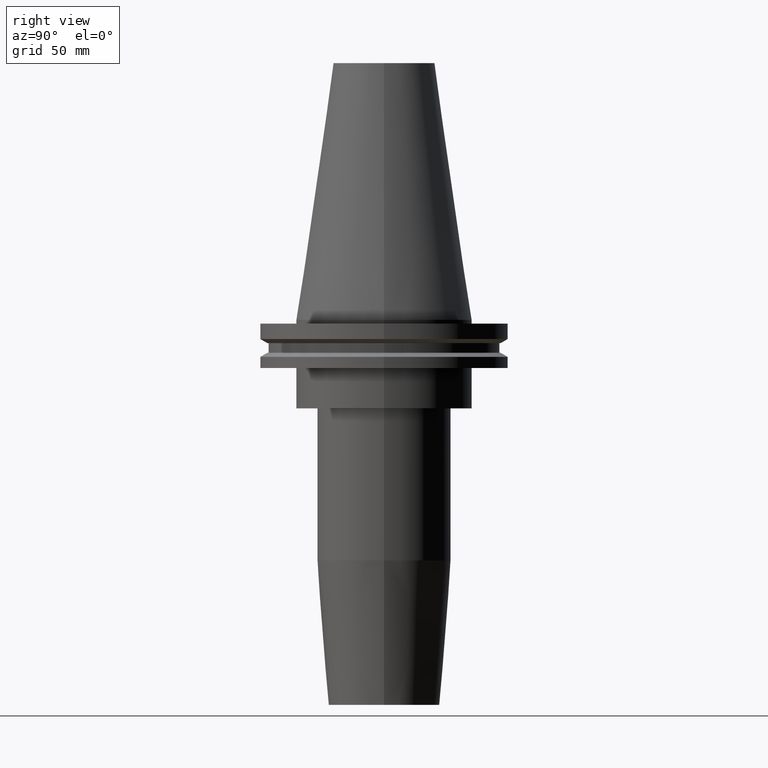
[diagram: clean part render]
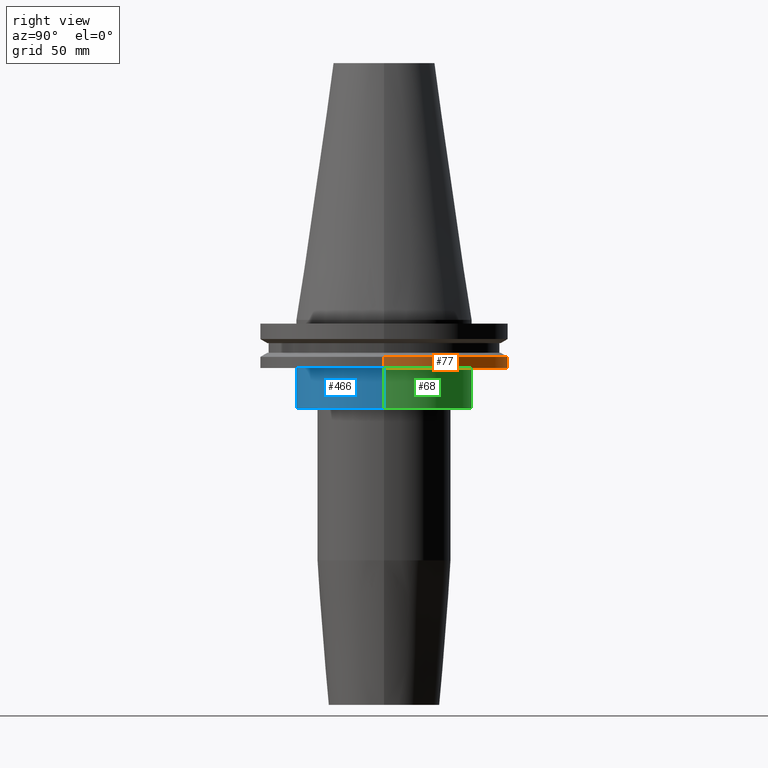
[diagram: same view with three faces highlighted in distinct colors, each labeled with its STEP entity id]
A machine part, right view with three faces highlighted in distinct colors.
Their STEP definitions:

[orange] entity #77 — the highlighted cylindrical surface (partial cylindrical patch) has radius 49.215 mm, axis along (-0, -0, 1).
#14 = CYLINDRICAL_SURFACE ( 'NONE', #409, 49.21499999999998920 ) ;
#20 = CIRCLE ( 'NONE', #680, 49.21499999999998920 ) ;
#46 = VERTEX_POINT ( 'NONE', #533 ) ;
#51 = ORIENTED_EDGE ( 'NONE', *, *, #300, .T. ) ;
#77 = ADVANCED_FACE ( 'NONE', ( #605 ), #14, .T. ) ;
#102 = CARTESIAN_POINT ( 'NONE',  ( 49.21499999999998920, 0.000000000000000000, 101.5999999999999943 ) ) ;
#151 = EDGE_CURVE ( 'NONE', #299, #189, #368, .T. ) ;
#162 = CARTESIAN_POINT ( 'NONE',  ( -49.21499999999998920, 6.027099222003697037E-15, -14.65761014474876944 ) ) ;
#189 = VERTEX_POINT ( 'NONE', #162 ) ;
#196 = AXIS2_PLACEMENT_3D ( 'NONE', #327, #730, #239 ) ;
#223 = DIRECTION ( 'NONE',  ( -0.000000000000000000, -0.000000000000000000, 1.000000000000000000 ) ) ;
#228 = EDGE_LOOP ( 'NONE', ( #51, #651, #295, #459 ) ) ;
#239 = DIRECTION ( 'NONE',  ( 1.000000000000000000, 0.000000000000000000, 0.000000000000000000 ) ) ;
#295 = ORIENTED_EDGE ( 'NONE', *, *, #719, .F. ) ;
#299 = VERTEX_POINT ( 'NONE', #444 ) ;
#300 = EDGE_CURVE ( 'NONE', #576, #299, #20, .T. ) ;
#302 = VECTOR ( 'NONE', #740, 1000.000000000000000 ) ;
#327 = CARTESIAN_POINT ( 'NONE',  ( 0.000000000000000000, 0.000000000000000000, -14.65761014474876944 ) ) ;
#334 = CARTESIAN_POINT ( 'NONE',  ( 0.000000000000000000, 0.000000000000000000, -19.04999999999999716 ) ) ;
#368 = LINE ( 'NONE', #745, #302 ) ;
#409 = AXIS2_PLACEMENT_3D ( 'NONE', #476, #732, #413 ) ;
#413 = DIRECTION ( 'NONE',  ( 1.000000000000000000, 0.000000000000000000, 0.000000000000000000 ) ) ;
#429 = CARTESIAN_POINT ( 'NONE',  ( 49.21499999999998920, 0.000000000000000000, -19.04999999999999716 ) ) ;
#444 = CARTESIAN_POINT ( 'NONE',  ( -49.21499999999998920, 6.027099222003697037E-15, -19.04999999999999716 ) ) ;
#459 = ORIENTED_EDGE ( 'NONE', *, *, #604, .F. ) ;
#476 = CARTESIAN_POINT ( 'NONE',  ( 0.000000000000000000, 0.000000000000000000, 101.5999999999999943 ) ) ;
#533 = CARTESIAN_POINT ( 'NONE',  ( 49.21499999999998920, 0.000000000000000000, -14.65761014474876944 ) ) ;
#576 = VERTEX_POINT ( 'NONE', #429 ) ;
#604 = EDGE_CURVE ( 'NONE', #576, #46, #742, .T. ) ;
#605 = FACE_OUTER_BOUND ( 'NONE', #228, .T. ) ;
#606 = CIRCLE ( 'NONE', #196, 49.21499999999998920 ) ;
#643 = DIRECTION ( 'NONE',  ( -0.000000000000000000, -0.000000000000000000, 1.000000000000000000 ) ) ;
#651 = ORIENTED_EDGE ( 'NONE', *, *, #151, .T. ) ;
#680 = AXIS2_PLACEMENT_3D ( 'NONE', #334, #643, #844 ) ;
#697 = VECTOR ( 'NONE', #223, 1000.000000000000000 ) ;
#719 = EDGE_CURVE ( 'NONE', #46, #189, #606, .T. ) ;
#730 = DIRECTION ( 'NONE',  ( -0.000000000000000000, -0.000000000000000000, 1.000000000000000000 ) ) ;
#732 = DIRECTION ( 'NONE',  ( -0.000000000000000000, -0.000000000000000000, 1.000000000000000000 ) ) ;
#740 = DIRECTION ( 'NONE',  ( -0.000000000000000000, -0.000000000000000000, 1.000000000000000000 ) ) ;
#742 = LINE ( 'NONE', #102, #697 ) ;
#745 = CARTESIAN_POINT ( 'NONE',  ( -49.21499999999998920, 6.027099222003697037E-15, 101.5999999999999943 ) ) ;
#844 = DIRECTION ( 'NONE',  ( 1.000000000000000000, 0.000000000000000000, 0.000000000000000000 ) ) ;

[blue] entity #466 — the highlighted cylindrical surface (partial cylindrical patch) has radius 34.925 mm, axis along (-0, -0, 1).
#43 = ORIENTED_EDGE ( 'NONE', *, *, #133, .T. ) ;
#49 = AXIS2_PLACEMENT_3D ( 'NONE', #436, #816, #229 ) ;
#60 = CARTESIAN_POINT ( 'NONE',  ( 0.000000000000000000, 0.000000000000000000, -19.04999999999999716 ) ) ;
#133 = EDGE_CURVE ( 'NONE', #775, #197, #424, .T. ) ;
#170 = CIRCLE ( 'NONE', #819, 34.92499999999999716 ) ;
#188 = DIRECTION ( 'NONE',  ( -0.000000000000000000, -0.000000000000000000, 1.000000000000000000 ) ) ;
#197 = VERTEX_POINT ( 'NONE', #682 ) ;
#213 = EDGE_LOOP ( 'NONE', ( #512, #43, #663, #536 ) ) ;
#218 = CARTESIAN_POINT ( 'NONE',  ( -34.92499999999999716, 4.277078946022130887E-15, -35.04999999999999716 ) ) ;
#229 = DIRECTION ( 'NONE',  ( 1.000000000000000000, 0.000000000000000000, 0.000000000000000000 ) ) ;
#253 = EDGE_CURVE ( 'NONE', #420, #838, #170, .T. ) ;
#260 = DIRECTION ( 'NONE',  ( -0.000000000000000000, -0.000000000000000000, 1.000000000000000000 ) ) ;
#356 = EDGE_CURVE ( 'NONE', #197, #838, #580, .T. ) ;
#399 = CYLINDRICAL_SURFACE ( 'NONE', #423, 34.92499999999999716 ) ;
#420 = VERTEX_POINT ( 'NONE', #603 ) ;
#423 = AXIS2_PLACEMENT_3D ( 'NONE', #654, #531, #731 ) ;
#424 = CIRCLE ( 'NONE', #49, 34.92499999999999716 ) ;
#426 = CARTESIAN_POINT ( 'NONE',  ( -34.92499999999999716, 4.277078946022130887E-15, 101.5999999999999943 ) ) ;
#436 = CARTESIAN_POINT ( 'NONE',  ( 0.000000000000000000, 0.000000000000000000, -35.04999999999999716 ) ) ;
#454 = VECTOR ( 'NONE', #260, 1000.000000000000000 ) ;
#466 = ADVANCED_FACE ( 'NONE', ( #528 ), #399, .T. ) ;
#503 = VECTOR ( 'NONE', #817, 1000.000000000000000 ) ;
#512 = ORIENTED_EDGE ( 'NONE', *, *, #614, .F. ) ;
#528 = FACE_OUTER_BOUND ( 'NONE', #213, .T. ) ;
#531 = DIRECTION ( 'NONE',  ( -0.000000000000000000, -0.000000000000000000, 1.000000000000000000 ) ) ;
#536 = ORIENTED_EDGE ( 'NONE', *, *, #253, .F. ) ;
#543 = LINE ( 'NONE', #426, #503 ) ;
#580 = LINE ( 'NONE', #848, #454 ) ;
#603 = CARTESIAN_POINT ( 'NONE',  ( -34.92499999999999716, 4.277078946022130887E-15, -19.04999999999999716 ) ) ;
#614 = EDGE_CURVE ( 'NONE', #775, #420, #543, .T. ) ;
#654 = CARTESIAN_POINT ( 'NONE',  ( 0.000000000000000000, 0.000000000000000000, 101.5999999999999943 ) ) ;
#663 = ORIENTED_EDGE ( 'NONE', *, *, #356, .T. ) ;
#682 = CARTESIAN_POINT ( 'NONE',  ( 34.92499999999999716, 0.000000000000000000, -35.04999999999999716 ) ) ;
#698 = CARTESIAN_POINT ( 'NONE',  ( 34.92499999999999716, 0.000000000000000000, -19.04999999999999716 ) ) ;
#731 = DIRECTION ( 'NONE',  ( 1.000000000000000000, 0.000000000000000000, 0.000000000000000000 ) ) ;
#775 = VERTEX_POINT ( 'NONE', #218 ) ;
#780 = DIRECTION ( 'NONE',  ( 1.000000000000000000, 0.000000000000000000, 0.000000000000000000 ) ) ;
#816 = DIRECTION ( 'NONE',  ( -0.000000000000000000, -0.000000000000000000, 1.000000000000000000 ) ) ;
#817 = DIRECTION ( 'NONE',  ( -0.000000000000000000, -0.000000000000000000, 1.000000000000000000 ) ) ;
#819 = AXIS2_PLACEMENT_3D ( 'NONE', #60, #188, #780 ) ;
#838 = VERTEX_POINT ( 'NONE', #698 ) ;
#848 = CARTESIAN_POINT ( 'NONE',  ( 34.92499999999999716, 0.000000000000000000, 101.5999999999999943 ) ) ;

[green] entity #68 — the highlighted cylindrical surface (partial cylindrical patch) has radius 34.925 mm, axis along (-0, -0, 1).
#21 = AXIS2_PLACEMENT_3D ( 'NONE', #26, #434, #298 ) ;
#26 = CARTESIAN_POINT ( 'NONE',  ( 0.000000000000000000, 0.000000000000000000, -35.04999999999999716 ) ) ;
#41 = DIRECTION ( 'NONE',  ( 1.000000000000000000, 0.000000000000000000, 0.000000000000000000 ) ) ;
#68 = ADVANCED_FACE ( 'NONE', ( #139 ), #671, .T. ) ;
#79 = CARTESIAN_POINT ( 'NONE',  ( 0.000000000000000000, 0.000000000000000000, 101.5999999999999943 ) ) ;
#113 = AXIS2_PLACEMENT_3D ( 'NONE', #117, #641, #41 ) ;
#117 = CARTESIAN_POINT ( 'NONE',  ( 0.000000000000000000, 0.000000000000000000, -19.04999999999999716 ) ) ;
#139 = FACE_OUTER_BOUND ( 'NONE', #257, .T. ) ;
#143 = DIRECTION ( 'NONE',  ( 1.000000000000000000, 0.000000000000000000, 0.000000000000000000 ) ) ;
#186 = ORIENTED_EDGE ( 'NONE', *, *, #560, .T. ) ;
#197 = VERTEX_POINT ( 'NONE', #682 ) ;
#218 = CARTESIAN_POINT ( 'NONE',  ( -34.92499999999999716, 4.277078946022130887E-15, -35.04999999999999716 ) ) ;
#230 = AXIS2_PLACEMENT_3D ( 'NONE', #79, #352, #143 ) ;
#257 = EDGE_LOOP ( 'NONE', ( #186, #263, #620, #443 ) ) ;
#260 = DIRECTION ( 'NONE',  ( -0.000000000000000000, -0.000000000000000000, 1.000000000000000000 ) ) ;
#263 = ORIENTED_EDGE ( 'NONE', *, *, #614, .T. ) ;
#296 = CIRCLE ( 'NONE', #113, 34.92499999999999716 ) ;
#298 = DIRECTION ( 'NONE',  ( 1.000000000000000000, 0.000000000000000000, 0.000000000000000000 ) ) ;
#352 = DIRECTION ( 'NONE',  ( -0.000000000000000000, -0.000000000000000000, 1.000000000000000000 ) ) ;
#356 = EDGE_CURVE ( 'NONE', #197, #838, #580, .T. ) ;
#420 = VERTEX_POINT ( 'NONE', #603 ) ;
#426 = CARTESIAN_POINT ( 'NONE',  ( -34.92499999999999716, 4.277078946022130887E-15, 101.5999999999999943 ) ) ;
#434 = DIRECTION ( 'NONE',  ( -0.000000000000000000, -0.000000000000000000, 1.000000000000000000 ) ) ;
#443 = ORIENTED_EDGE ( 'NONE', *, *, #356, .F. ) ;
#454 = VECTOR ( 'NONE', #260, 1000.000000000000000 ) ;
#503 = VECTOR ( 'NONE', #817, 1000.000000000000000 ) ;
#543 = LINE ( 'NONE', #426, #503 ) ;
#560 = EDGE_CURVE ( 'NONE', #197, #775, #744, .T. ) ;
#580 = LINE ( 'NONE', #848, #454 ) ;
#603 = CARTESIAN_POINT ( 'NONE',  ( -34.92499999999999716, 4.277078946022130887E-15, -19.04999999999999716 ) ) ;
#614 = EDGE_CURVE ( 'NONE', #775, #420, #543, .T. ) ;
#620 = ORIENTED_EDGE ( 'NONE', *, *, #845, .F. ) ;
#641 = DIRECTION ( 'NONE',  ( -0.000000000000000000, -0.000000000000000000, 1.000000000000000000 ) ) ;
#671 = CYLINDRICAL_SURFACE ( 'NONE', #230, 34.92499999999999716 ) ;
#682 = CARTESIAN_POINT ( 'NONE',  ( 34.92499999999999716, 0.000000000000000000, -35.04999999999999716 ) ) ;
#698 = CARTESIAN_POINT ( 'NONE',  ( 34.92499999999999716, 0.000000000000000000, -19.04999999999999716 ) ) ;
#744 = CIRCLE ( 'NONE', #21, 34.92499999999999716 ) ;
#775 = VERTEX_POINT ( 'NONE', #218 ) ;
#817 = DIRECTION ( 'NONE',  ( -0.000000000000000000, -0.000000000000000000, 1.000000000000000000 ) ) ;
#838 = VERTEX_POINT ( 'NONE', #698 ) ;
#845 = EDGE_CURVE ( 'NONE', #838, #420, #296, .T. ) ;
#848 = CARTESIAN_POINT ( 'NONE',  ( 34.92499999999999716, 0.000000000000000000, 101.5999999999999943 ) ) ;